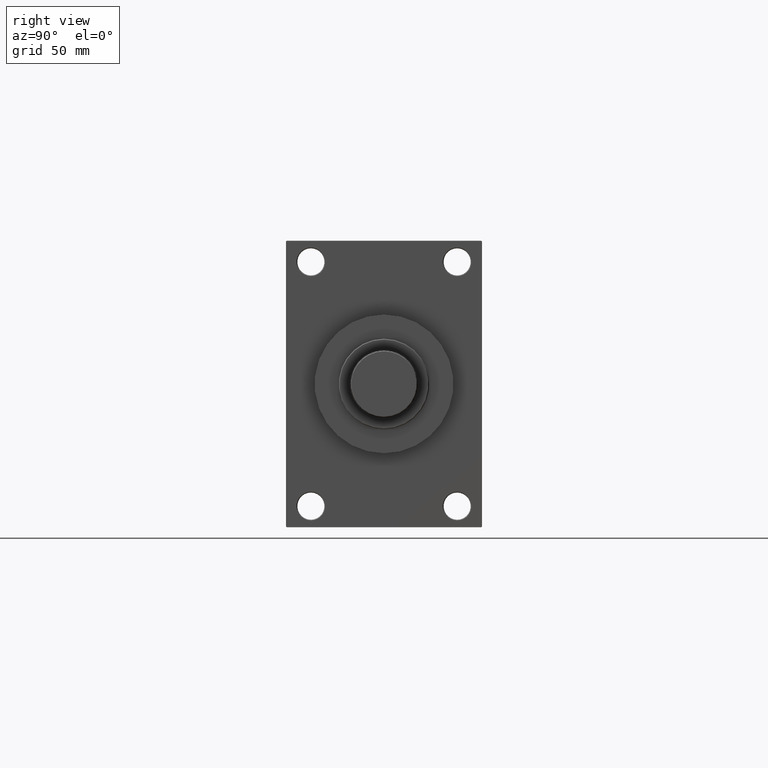
[diagram: clean part render]
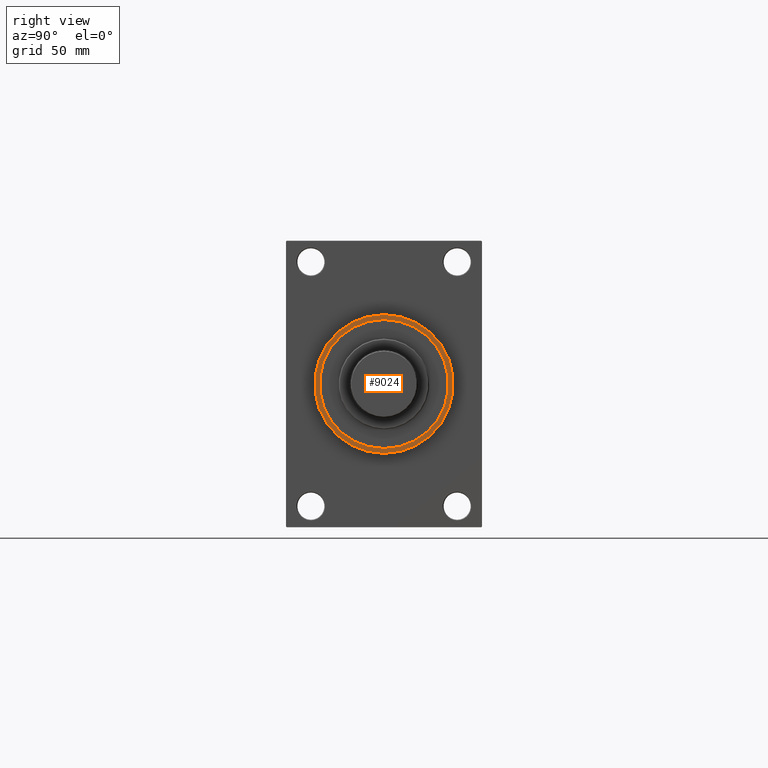
[diagram: same view with one face highlighted and labeled with its STEP entity id]
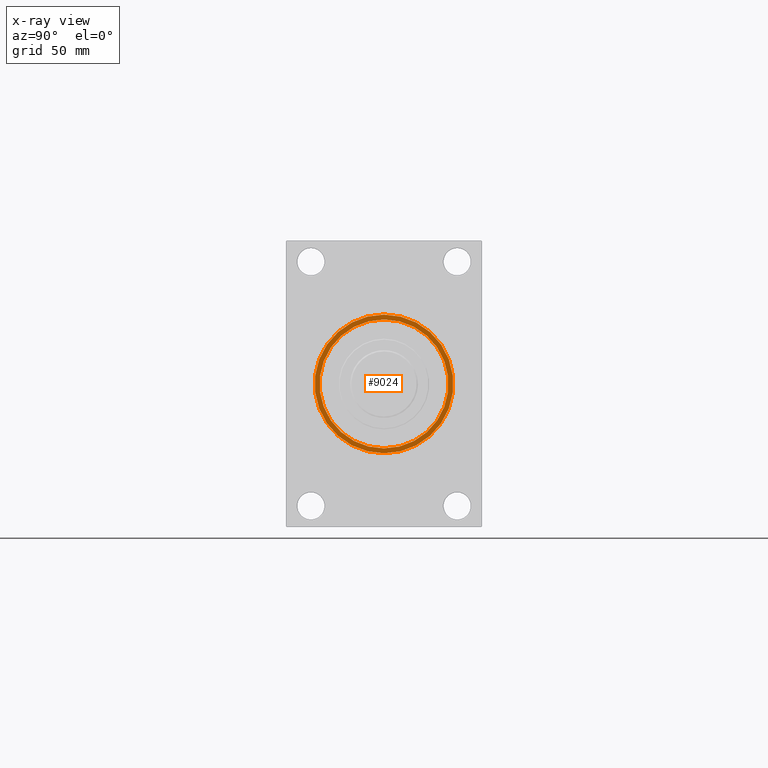
[diagram: x-ray of the same camera — body ghosted, the highlighted face saturated]
A machine part, right view. The second image highlights one B-rep face of the part: STEP entity #9024.
The next image is the same camera in x-ray: the body ghosted, the highlighted face saturated — about 0% of this face is hidden behind the body in this view.
In plain terms, the highlighted planar face has unit normal (1, 0, 0).
Its self-contained STEP definition (entity closure, byte-faithful):
#736 = AXIS2_PLACEMENT_3D ( 'NONE', #31483, #27356, #31247 ) ;
#2276 = FACE_BOUND ( 'NONE', #26671, .T. ) ;
#3305 = DIRECTION ( 'NONE',  ( 0.000000000000000000, 0.000000000000000000, -1.000000000000000000 ) ) ;
#4336 = DIRECTION ( 'NONE',  ( 0.000000000000000000, 0.000000000000000000, -1.000000000000000000 ) ) ;
#5935 = PLANE ( 'NONE',  #14725 ) ;
#8853 = VERTEX_POINT ( 'NONE', #11580 ) ;
#9024 = ADVANCED_FACE ( 'NONE', ( #2276, #32437 ), #5935, .T. ) ;
#9896 = DIRECTION ( 'NONE',  ( 1.000000000000000000, 0.000000000000000000, 0.000000000000000000 ) ) ;
#10524 = VERTEX_POINT ( 'NONE', #47746 ) ;
#11571 = CIRCLE ( 'NONE', #18537, 42.75000000000000000 ) ;
#11580 = CARTESIAN_POINT ( 'NONE',  ( 328.0000000000000000, 0.000000000000000000, -42.75000000000000000 ) ) ;
#12467 = ORIENTED_EDGE ( 'NONE', *, *, #27150, .T. ) ;
#13371 = ORIENTED_EDGE ( 'NONE', *, *, #41108, .F. ) ;
#14725 = AXIS2_PLACEMENT_3D ( 'NONE', #17127, #39477, #43852 ) ;
#15959 = CARTESIAN_POINT ( 'NONE',  ( 328.0000000000000000, 0.000000000000000000, 0.000000000000000000 ) ) ;
#17127 = CARTESIAN_POINT ( 'NONE',  ( 328.0000000000000000, 0.000000000000000000, 0.000000000000000000 ) ) ;
#17428 = CARTESIAN_POINT ( 'NONE',  ( 328.0000000000000000, 0.000000000000000000, 0.000000000000000000 ) ) ;
#18537 = AXIS2_PLACEMENT_3D ( 'NONE', #17428, #9896, #3305 ) ;
#22386 = EDGE_LOOP ( 'NONE', ( #12467, #37408 ) ) ;
#22829 = AXIS2_PLACEMENT_3D ( 'NONE', #15959, #38308, #39273 ) ;
#23299 = DIRECTION ( 'NONE',  ( 1.000000000000000000, 0.000000000000000000, 0.000000000000000000 ) ) ;
#23488 = ORIENTED_EDGE ( 'NONE', *, *, #24676, .F. ) ;
#24275 = CARTESIAN_POINT ( 'NONE',  ( 328.0000000000000000, 5.633375276077824704E-15, -46.00000000000000000 ) ) ;
#24676 = EDGE_CURVE ( 'NONE', #8853, #37367, #11571, .T. ) ;
#25616 = CIRCLE ( 'NONE', #736, 46.00000000000000000 ) ;
#26671 = EDGE_LOOP ( 'NONE', ( #23488, #13371 ) ) ;
#27150 = EDGE_CURVE ( 'NONE', #10524, #40919, #25616, .T. ) ;
#27356 = DIRECTION ( 'NONE',  ( 1.000000000000000000, 0.000000000000000000, 0.000000000000000000 ) ) ;
#29942 = EDGE_CURVE ( 'NONE', #40919, #10524, #32696, .T. ) ;
#31247 = DIRECTION ( 'NONE',  ( 0.000000000000000000, 0.000000000000000000, -1.000000000000000000 ) ) ;
#31483 = CARTESIAN_POINT ( 'NONE',  ( 328.0000000000000000, 0.000000000000000000, 0.000000000000000000 ) ) ;
#32437 = FACE_OUTER_BOUND ( 'NONE', #22386, .T. ) ;
#32696 = CIRCLE ( 'NONE', #41959, 46.00000000000000000 ) ;
#34971 = CARTESIAN_POINT ( 'NONE',  ( 328.0000000000000000, 0.000000000000000000, 0.000000000000000000 ) ) ;
#37367 = VERTEX_POINT ( 'NONE', #47151 ) ;
#37408 = ORIENTED_EDGE ( 'NONE', *, *, #29942, .T. ) ;
#38308 = DIRECTION ( 'NONE',  ( 1.000000000000000000, 0.000000000000000000, 0.000000000000000000 ) ) ;
#39273 = DIRECTION ( 'NONE',  ( 0.000000000000000000, 0.000000000000000000, -1.000000000000000000 ) ) ;
#39477 = DIRECTION ( 'NONE',  ( 1.000000000000000000, 0.000000000000000000, 0.000000000000000000 ) ) ;
#39889 = CIRCLE ( 'NONE', #22829, 42.75000000000000000 ) ;
#40919 = VERTEX_POINT ( 'NONE', #24275 ) ;
#41108 = EDGE_CURVE ( 'NONE', #37367, #8853, #39889, .T. ) ;
#41959 = AXIS2_PLACEMENT_3D ( 'NONE', #34971, #23299, #4336 ) ;
#43852 = DIRECTION ( 'NONE',  ( 0.000000000000000000, 0.000000000000000000, -1.000000000000000000 ) ) ;
#47151 = CARTESIAN_POINT ( 'NONE',  ( 328.0000000000000000, 5.235365066354935472E-15, 42.75000000000000000 ) ) ;
#47746 = CARTESIAN_POINT ( 'NONE',  ( 328.0000000000000000, 0.000000000000000000, 46.00000000000000000 ) ) ;